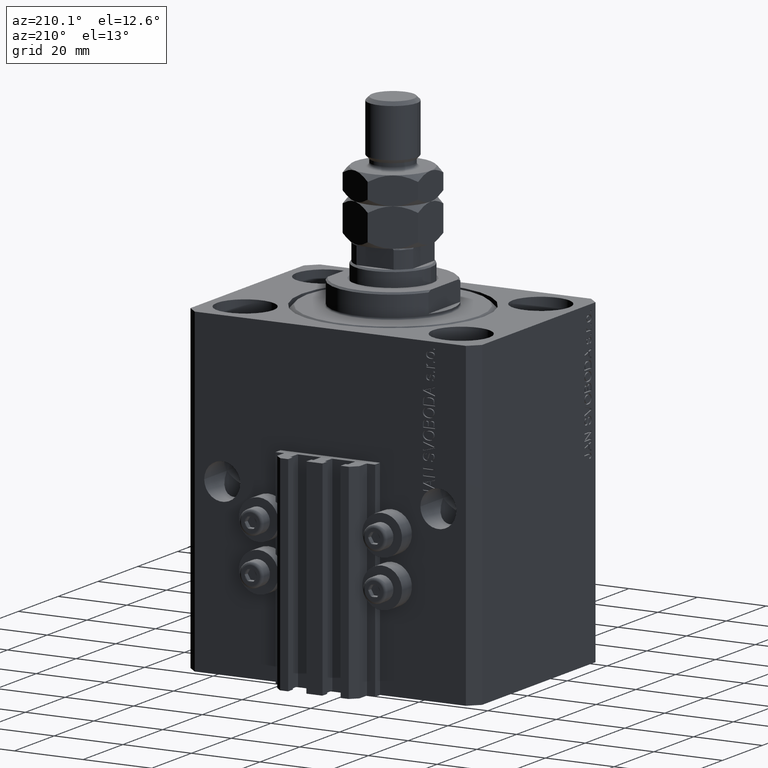
[diagram: clean part render]
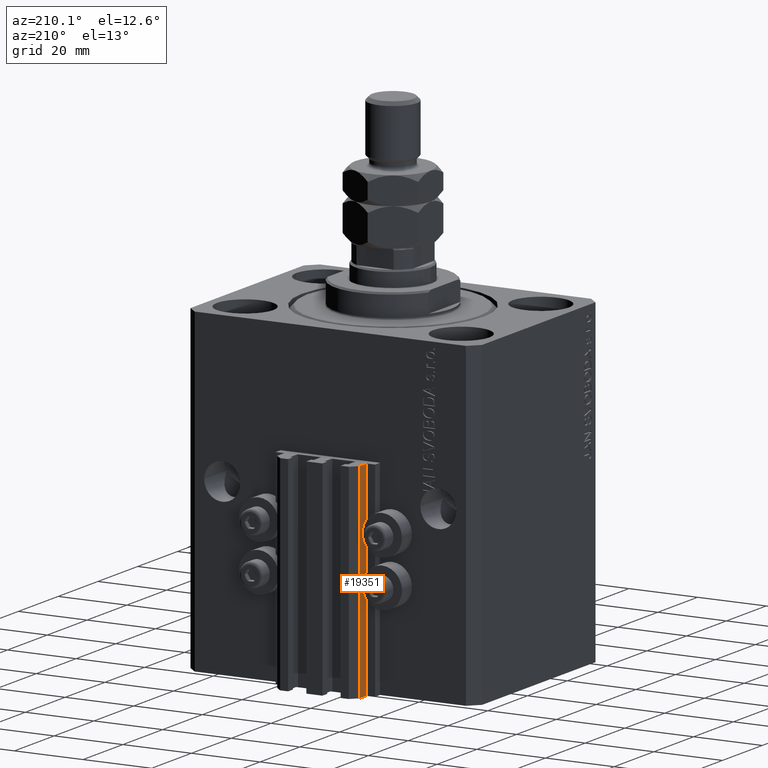
[diagram: same view with one face highlighted and labeled with its STEP entity id]
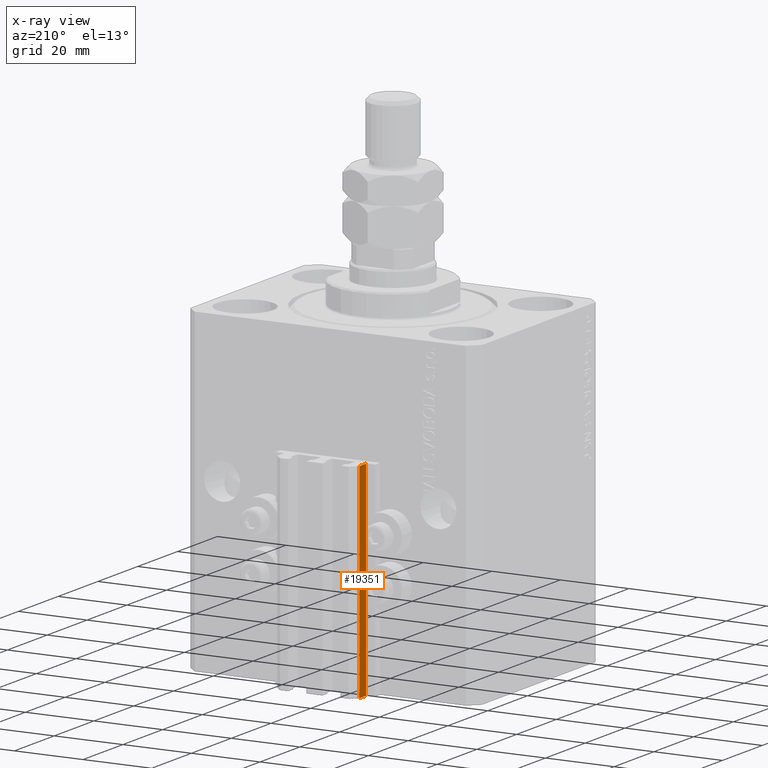
[diagram: x-ray of the same camera — body ghosted, the highlighted face saturated]
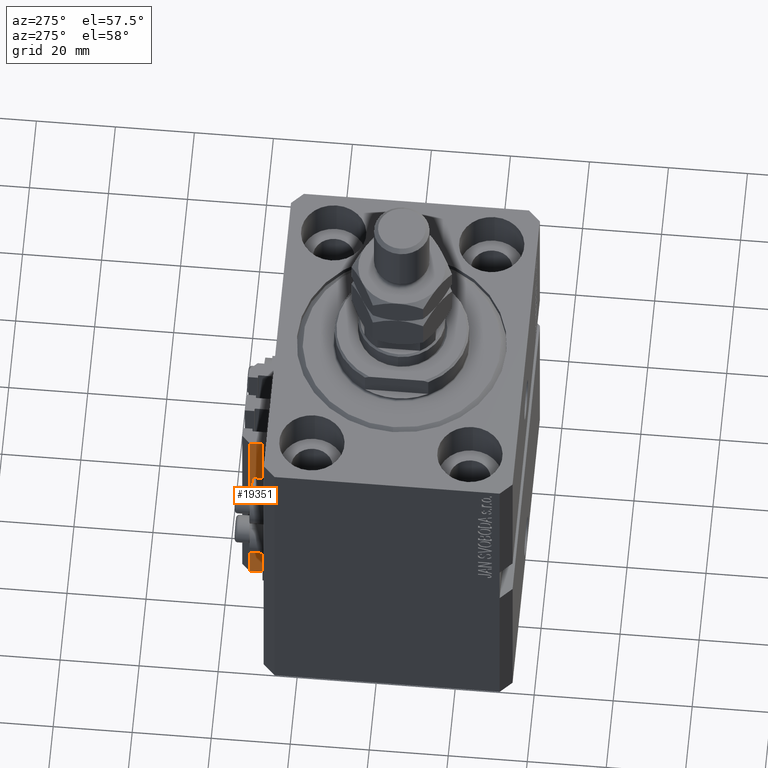
[diagram: same view with one face highlighted and labeled with its STEP entity id]
A machine part, auxiliary view. The second image highlights one B-rep face of the part: STEP entity #19351.
The next image is the same camera in x-ray: the body ghosted, the highlighted face saturated — about 0% of this face is hidden behind the body in this view.
A second angle (auxiliary view) of the same face is appended — the face is thin or edge-on in the first view.
In plain terms, the highlighted planar face has unit normal (-1, 0, 0).
Its self-contained STEP definition (entity closure, byte-faithful):
#1286 = ORIENTED_EDGE ( 'NONE', *, *, #29334, .F. ) ;
#3014 = VERTEX_POINT ( 'NONE', #45457 ) ;
#3321 = VERTEX_POINT ( 'NONE', #5072 ) ;
#5072 = CARTESIAN_POINT ( 'NONE',  ( -12.00000000000000000, 37.49999999999999289, -33.00000000000000000 ) ) ;
#5910 = DIRECTION ( 'NONE',  ( 0.000000000000000000, -1.000000000000000000, 0.000000000000000000 ) ) ;
#9693 = DIRECTION ( 'NONE',  ( 0.000000000000000000, -1.000000000000000000, 0.000000000000000000 ) ) ;
#9750 = AXIS2_PLACEMENT_3D ( 'NONE', #11747, #27154, #41615 ) ;
#10653 = VECTOR ( 'NONE', #15086, 1000.000000000000000 ) ;
#11747 = CARTESIAN_POINT ( 'NONE',  ( -12.00000000000000000, 37.49999999999999289, -93.00000000000000000 ) ) ;
#13643 = LINE ( 'NONE', #36308, #19215 ) ;
#15086 = DIRECTION ( 'NONE',  ( 0.000000000000000000, 0.000000000000000000, 1.000000000000000000 ) ) ;
#15277 = VERTEX_POINT ( 'NONE', #40056 ) ;
#15785 = ORIENTED_EDGE ( 'NONE', *, *, #29888, .T. ) ;
#17143 = CARTESIAN_POINT ( 'NONE',  ( -12.00000000000000000, 37.49999999999999289, -33.00000000000000000 ) ) ;
#19215 = VECTOR ( 'NONE', #25357, 1000.000000000000000 ) ;
#19351 = ADVANCED_FACE ( 'NONE', ( #30885 ), #42107, .T. ) ;
#20414 = VERTEX_POINT ( 'NONE', #49079 ) ;
#22700 = VECTOR ( 'NONE', #5910, 1000.000000000000000 ) ;
#22798 = CARTESIAN_POINT ( 'NONE',  ( -12.00000000000000000, 34.19999999999999574, -93.00000000000000000 ) ) ;
#24802 = LINE ( 'NONE', #42990, #22700 ) ;
#25357 = DIRECTION ( 'NONE',  ( 0.000000000000000000, 0.000000000000000000, 1.000000000000000000 ) ) ;
#27154 = DIRECTION ( 'NONE',  ( -1.000000000000000000, 0.000000000000000000, 0.000000000000000000 ) ) ;
#29334 = EDGE_CURVE ( 'NONE', #3321, #15277, #43783, .T. ) ;
#29888 = EDGE_CURVE ( 'NONE', #3014, #20414, #24802, .T. ) ;
#30885 = FACE_OUTER_BOUND ( 'NONE', #43445, .T. ) ;
#36308 = CARTESIAN_POINT ( 'NONE',  ( -12.00000000000000000, 37.49999999999999289, -93.00000000000000000 ) ) ;
#40056 = CARTESIAN_POINT ( 'NONE',  ( -12.00000000000000000, 34.19999999999999574, -33.00000000000000000 ) ) ;
#41603 = ORIENTED_EDGE ( 'NONE', *, *, #45458, .T. ) ;
#41615 = DIRECTION ( 'NONE',  ( 0.000000000000000000, 0.000000000000000000, 1.000000000000000000 ) ) ;
#41810 = EDGE_CURVE ( 'NONE', #3014, #3321, #13643, .T. ) ;
#42107 = PLANE ( 'NONE',  #9750 ) ;
#42990 = CARTESIAN_POINT ( 'NONE',  ( -12.00000000000000000, 37.49999999999999289, -93.00000000000000000 ) ) ;
#43445 = EDGE_LOOP ( 'NONE', ( #1286, #48041, #15785, #41603 ) ) ;
#43783 = LINE ( 'NONE', #17143, #46522 ) ;
#45458 = EDGE_CURVE ( 'NONE', #20414, #15277, #49184, .T. ) ;
#45457 = CARTESIAN_POINT ( 'NONE',  ( -12.00000000000000000, 37.49999999999999289, -93.00000000000000000 ) ) ;
#46522 = VECTOR ( 'NONE', #9693, 1000.000000000000000 ) ;
#48041 = ORIENTED_EDGE ( 'NONE', *, *, #41810, .F. ) ;
#49079 = CARTESIAN_POINT ( 'NONE',  ( -12.00000000000000000, 34.19999999999999574, -93.00000000000000000 ) ) ;
#49184 = LINE ( 'NONE', #22798, #10653 ) ;